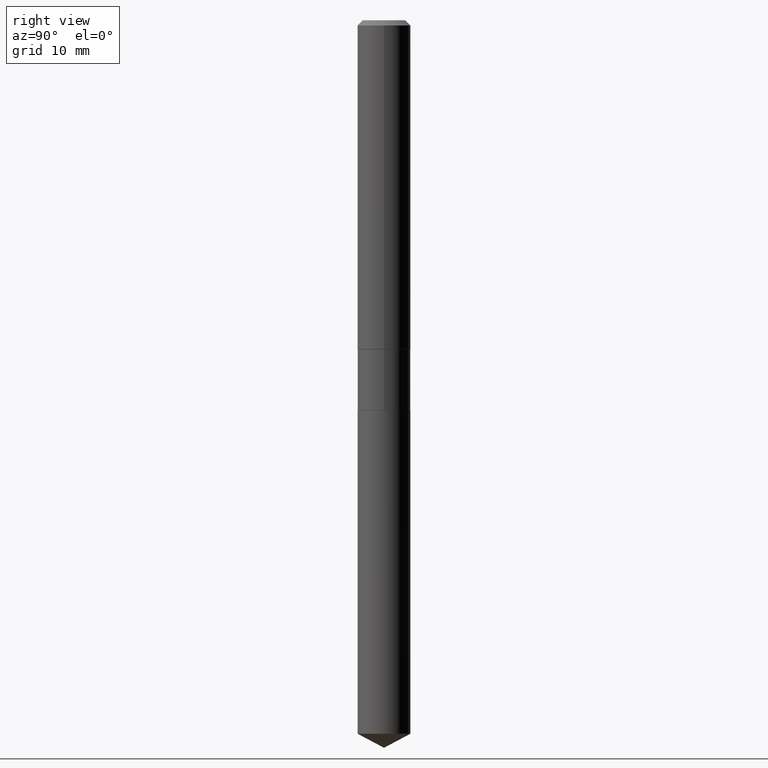
[diagram: clean part render]
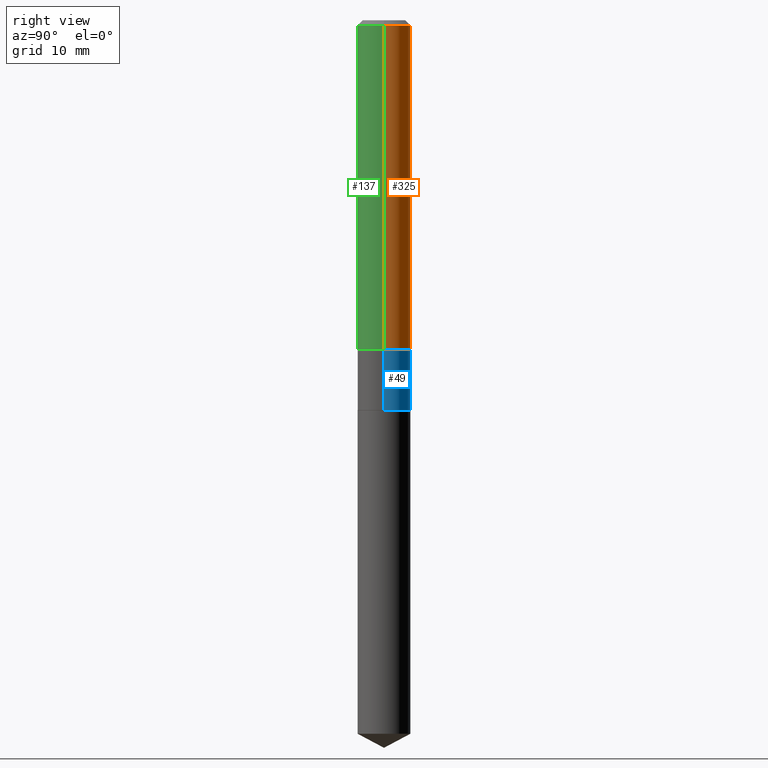
[diagram: same view with three faces highlighted in distinct colors, each labeled with its STEP entity id]
A machine part, right view with three faces highlighted in distinct colors.
Their STEP definitions:

[orange] entity #325 — the highlighted cylindrical surface (edge-blend (fillet) strip) has radius 2.9997 mm, axis along (-0, 0, 1).
#12 = EDGE_CURVE ( 'NONE', #139, #434, #409, .T. ) ;
#15 = LINE ( 'NONE', #182, #74 ) ;
#22 = CIRCLE ( 'NONE', #344, 0.1181000000000001632 ) ;
#28 = LINE ( 'NONE', #285, #127 ) ;
#60 = DIRECTION ( 'NONE',  ( 1.000000000000000000, -6.982962677686266711E-15, 4.876176775795936353E-29 ) ) ;
#70 = DIRECTION ( 'NONE',  ( 1.000000000000000000, -6.982962677686270655E-15, 0.000000000000000000 ) ) ;
#74 = VECTOR ( 'NONE', #219, 39.37007874015748143 ) ;
#91 = EDGE_LOOP ( 'NONE', ( #449, #390, #482, #176 ) ) ;
#100 = DIRECTION ( 'NONE',  ( -2.445468806185136597E-29, 3.491481338843145583E-15, 1.000000000000000000 ) ) ;
#127 = VECTOR ( 'NONE', #329, 39.37007874015748143 ) ;
#139 = VERTEX_POINT ( 'NONE', #156 ) ;
#140 = CARTESIAN_POINT ( 'NONE',  ( -0.1180999999999999966, -1.750690226967611791E-15, -0.02362000000000014088 ) ) ;
#141 = CYLINDRICAL_SURFACE ( 'NONE', #307, 0.1181000000000000799 ) ;
#156 = CARTESIAN_POINT ( 'NONE',  ( 0.1180999999999999966, -9.071566814582237199E-16, -0.02362000000000014088 ) ) ;
#176 = ORIENTED_EDGE ( 'NONE', *, *, #466, .F. ) ;
#182 = CARTESIAN_POINT ( 'NONE',  ( 0.1181000000000000799, -8.246878922347486570E-16, 5.758764772215004644E-30 ) ) ;
#188 = VERTEX_POINT ( 'NONE', #351 ) ;
#219 = DIRECTION ( 'NONE',  ( -2.445468806185136877E-29, 3.491481338843145188E-15, 1.000000000000000000 ) ) ;
#260 = CARTESIAN_POINT ( 'NONE',  ( 3.570139910149679929E-29, -5.097213606577107280E-15, -1.459899999999999531 ) ) ;
#285 = CARTESIAN_POINT ( 'NONE',  ( -0.1181000000000000799, 8.391509709326788873E-16, -5.809262341591047988E-30 ) ) ;
#296 = DIRECTION ( 'NONE',  ( -2.445468806185136597E-29, 3.491481338843145583E-15, 1.000000000000000000 ) ) ;
#307 = AXIS2_PLACEMENT_3D ( 'NONE', #439, #100, #60 ) ;
#310 = DIRECTION ( 'NONE',  ( 1.000000000000000000, -6.982962677686266711E-15, 0.000000000000000000 ) ) ;
#324 = FACE_OUTER_BOUND ( 'NONE', #91, .T. ) ;
#325 = ADVANCED_FACE ( 'NONE', ( #324 ), #141, .T. ) ;
#327 = CARTESIAN_POINT ( 'NONE',  ( 0.1181000000000001632, -5.921901498811854753E-15, -1.459899999999999531 ) ) ;
#329 = DIRECTION ( 'NONE',  ( -2.445468806185136877E-29, 3.491481338843145188E-15, 1.000000000000000000 ) ) ;
#339 = CARTESIAN_POINT ( 'NONE',  ( 5.776197320209327532E-31, -8.246878922347559293E-17, -0.02362000000000014088 ) ) ;
#344 = AXIS2_PLACEMENT_3D ( 'NONE', #260, #296, #70 ) ;
#351 = CARTESIAN_POINT ( 'NONE',  ( -0.1181000000000001632, -4.258062635644426716E-15, -1.459899999999999531 ) ) ;
#355 = EDGE_CURVE ( 'NONE', #444, #188, #22, .T. ) ;
#376 = AXIS2_PLACEMENT_3D ( 'NONE', #339, #420, #310 ) ;
#390 = ORIENTED_EDGE ( 'NONE', *, *, #432, .T. ) ;
#409 = CIRCLE ( 'NONE', #376, 0.1180999999999999966 ) ;
#420 = DIRECTION ( 'NONE',  ( -2.445468806185136597E-29, 3.491481338843145583E-15, 1.000000000000000000 ) ) ;
#432 = EDGE_CURVE ( 'NONE', #188, #434, #28, .T. ) ;
#434 = VERTEX_POINT ( 'NONE', #140 ) ;
#439 = CARTESIAN_POINT ( 'NONE',  ( 0.000000000000000000, 0.000000000000000000, 0.000000000000000000 ) ) ;
#444 = VERTEX_POINT ( 'NONE', #327 ) ;
#449 = ORIENTED_EDGE ( 'NONE', *, *, #355, .T. ) ;
#466 = EDGE_CURVE ( 'NONE', #444, #139, #15, .T. ) ;
#482 = ORIENTED_EDGE ( 'NONE', *, *, #12, .F. ) ;

[blue] entity #49 — the highlighted cylindrical surface (edge-blend (fillet) strip) has radius 2.9769 mm, axis along (-0, 0, 1).
#8 = CARTESIAN_POINT ( 'NONE',  ( 0.1171999999999999709, -5.918759165606896047E-15, -1.460799999999999876 ) ) ;
#16 = DIRECTION ( 'NONE',  ( -2.445468806185136597E-29, 3.491481338843145583E-15, 1.000000000000000000 ) ) ;
#26 = CARTESIAN_POINT ( 'NONE',  ( 0.1171999999999999986, -6.858316793889587922E-15, -1.729899999999999993 ) ) ;
#39 = VERTEX_POINT ( 'NONE', #124 ) ;
#45 = DIRECTION ( 'NONE',  ( -2.445468806185136597E-29, 3.491481338843145583E-15, 1.000000000000000000 ) ) ;
#49 = ADVANCED_FACE ( 'NONE', ( #86 ), #80, .T. ) ;
#65 = LINE ( 'NONE', #171, #410 ) ;
#73 = AXIS2_PLACEMENT_3D ( 'NONE', #232, #308, #118 ) ;
#76 = ORIENTED_EDGE ( 'NONE', *, *, #244, .F. ) ;
#80 = CYLINDRICAL_SURFACE ( 'NONE', #73, 0.1171999999999999847 ) ;
#86 = FACE_OUTER_BOUND ( 'NONE', #108, .T. ) ;
#89 = VERTEX_POINT ( 'NONE', #8 ) ;
#98 = EDGE_CURVE ( 'NONE', #294, #39, #387, .T. ) ;
#108 = EDGE_LOOP ( 'NONE', ( #264, #161, #76, #110 ) ) ;
#110 = ORIENTED_EDGE ( 'NONE', *, *, #380, .F. ) ;
#118 = DIRECTION ( 'NONE',  ( 1.000000000000000000, -6.982962677686266711E-15, 4.876176775795935793E-29 ) ) ;
#124 = CARTESIAN_POINT ( 'NONE',  ( -0.1171999999999999709, -4.737378667612574713E-15, -1.460799999999999876 ) ) ;
#144 = EDGE_CURVE ( 'NONE', #330, #294, #160, .T. ) ;
#160 = CIRCLE ( 'NONE', #350, 0.1171999999999999986 ) ;
#161 = ORIENTED_EDGE ( 'NONE', *, *, #98, .T. ) ;
#171 = CARTESIAN_POINT ( 'NONE',  ( 0.1171999999999999847, -8.184032258248303567E-16, 5.714879181232835774E-30 ) ) ;
#173 = DIRECTION ( 'NONE',  ( 1.000000000000000000, -6.982962677686263555E-15, 0.000000000000000000 ) ) ;
#177 = CIRCLE ( 'NONE', #481, 0.1171999999999999709 ) ;
#232 = CARTESIAN_POINT ( 'NONE',  ( 0.000000000000000000, 0.000000000000000000, 0.000000000000000000 ) ) ;
#234 = DIRECTION ( 'NONE',  ( 1.000000000000000000, -6.982962677686269866E-15, 0.000000000000000000 ) ) ;
#244 = EDGE_CURVE ( 'NONE', #89, #39, #177, .T. ) ;
#253 = CARTESIAN_POINT ( 'NONE',  ( -0.1172000000000000125, -4.737378667612574713E-15, -1.729899999999999993 ) ) ;
#264 = ORIENTED_EDGE ( 'NONE', *, *, #144, .T. ) ;
#276 = CARTESIAN_POINT ( 'NONE',  ( -0.1171999999999999847, 8.327560863108373095E-16, -5.764991925778748420E-30 ) ) ;
#294 = VERTEX_POINT ( 'NONE', #253 ) ;
#305 = CARTESIAN_POINT ( 'NONE',  ( 4.230416487819667730E-29, -6.039913568064757072E-15, -1.729899999999999993 ) ) ;
#308 = DIRECTION ( 'NONE',  ( -2.445468806185136597E-29, 3.491481338843145583E-15, 1.000000000000000000 ) ) ;
#312 = DIRECTION ( 'NONE',  ( -2.445468806185136877E-29, 3.491481338843145188E-15, 1.000000000000000000 ) ) ;
#320 = VECTOR ( 'NONE', #312, 39.37007874015748143 ) ;
#330 = VERTEX_POINT ( 'NONE', #26 ) ;
#350 = AXIS2_PLACEMENT_3D ( 'NONE', #305, #45, #234 ) ;
#354 = CARTESIAN_POINT ( 'NONE',  ( 3.572340832075246748E-29, -5.100355939782065986E-15, -1.460799999999999876 ) ) ;
#356 = DIRECTION ( 'NONE',  ( -2.445468806185136877E-29, 3.491481338843145188E-15, 1.000000000000000000 ) ) ;
#380 = EDGE_CURVE ( 'NONE', #330, #89, #65, .T. ) ;
#387 = LINE ( 'NONE', #276, #320 ) ;
#410 = VECTOR ( 'NONE', #356, 39.37007874015748143 ) ;
#481 = AXIS2_PLACEMENT_3D ( 'NONE', #354, #16, #173 ) ;

[green] entity #137 — the highlighted cylindrical surface (edge-blend (fillet) strip) has radius 2.9997 mm, axis along (-0, 0, 1).
#15 = LINE ( 'NONE', #182, #74 ) ;
#21 = DIRECTION ( 'NONE',  ( -2.445468806185136597E-29, 3.491481338843145583E-15, 1.000000000000000000 ) ) ;
#28 = LINE ( 'NONE', #285, #127 ) ;
#57 = ORIENTED_EDGE ( 'NONE', *, *, #466, .T. ) ;
#74 = VECTOR ( 'NONE', #219, 39.37007874015748143 ) ;
#125 = DIRECTION ( 'NONE',  ( 1.000000000000000000, -6.982962677686266711E-15, 4.876176775795936353E-29 ) ) ;
#127 = VECTOR ( 'NONE', #329, 39.37007874015748143 ) ;
#128 = CARTESIAN_POINT ( 'NONE',  ( 0.000000000000000000, 0.000000000000000000, 0.000000000000000000 ) ) ;
#130 = ORIENTED_EDGE ( 'NONE', *, *, #279, .T. ) ;
#137 = ADVANCED_FACE ( 'NONE', ( #273 ), #381, .T. ) ;
#138 = EDGE_LOOP ( 'NONE', ( #334, #130, #57, #454 ) ) ;
#139 = VERTEX_POINT ( 'NONE', #156 ) ;
#140 = CARTESIAN_POINT ( 'NONE',  ( -0.1180999999999999966, -1.750690226967611791E-15, -0.02362000000000014088 ) ) ;
#156 = CARTESIAN_POINT ( 'NONE',  ( 0.1180999999999999966, -9.071566814582237199E-16, -0.02362000000000014088 ) ) ;
#182 = CARTESIAN_POINT ( 'NONE',  ( 0.1181000000000000799, -8.246878922347486570E-16, 5.758764772215004644E-30 ) ) ;
#188 = VERTEX_POINT ( 'NONE', #351 ) ;
#219 = DIRECTION ( 'NONE',  ( -2.445468806185136877E-29, 3.491481338843145188E-15, 1.000000000000000000 ) ) ;
#236 = AXIS2_PLACEMENT_3D ( 'NONE', #243, #21, #471 ) ;
#243 = CARTESIAN_POINT ( 'NONE',  ( 3.570139910149679929E-29, -5.097213606577107280E-15, -1.459899999999999531 ) ) ;
#258 = DIRECTION ( 'NONE',  ( 1.000000000000000000, -6.982962677686266711E-15, 0.000000000000000000 ) ) ;
#270 = DIRECTION ( 'NONE',  ( -2.445468806185136597E-29, 3.491481338843145583E-15, 1.000000000000000000 ) ) ;
#273 = FACE_OUTER_BOUND ( 'NONE', #138, .T. ) ;
#279 = EDGE_CURVE ( 'NONE', #188, #444, #451, .T. ) ;
#284 = CIRCLE ( 'NONE', #472, 0.1180999999999999966 ) ;
#285 = CARTESIAN_POINT ( 'NONE',  ( -0.1181000000000000799, 8.391509709326788873E-16, -5.809262341591047988E-30 ) ) ;
#327 = CARTESIAN_POINT ( 'NONE',  ( 0.1181000000000001632, -5.921901498811854753E-15, -1.459899999999999531 ) ) ;
#329 = DIRECTION ( 'NONE',  ( -2.445468806185136877E-29, 3.491481338843145188E-15, 1.000000000000000000 ) ) ;
#334 = ORIENTED_EDGE ( 'NONE', *, *, #432, .F. ) ;
#351 = CARTESIAN_POINT ( 'NONE',  ( -0.1181000000000001632, -4.258062635644426716E-15, -1.459899999999999531 ) ) ;
#381 = CYLINDRICAL_SURFACE ( 'NONE', #385, 0.1181000000000000799 ) ;
#385 = AXIS2_PLACEMENT_3D ( 'NONE', #128, #270, #125 ) ;
#393 = DIRECTION ( 'NONE',  ( -2.445468806185136597E-29, 3.491481338843145583E-15, 1.000000000000000000 ) ) ;
#432 = EDGE_CURVE ( 'NONE', #188, #434, #28, .T. ) ;
#434 = VERTEX_POINT ( 'NONE', #140 ) ;
#444 = VERTEX_POINT ( 'NONE', #327 ) ;
#447 = CARTESIAN_POINT ( 'NONE',  ( 5.776197320209327532E-31, -8.246878922347559293E-17, -0.02362000000000014088 ) ) ;
#451 = CIRCLE ( 'NONE', #236, 0.1181000000000001632 ) ;
#454 = ORIENTED_EDGE ( 'NONE', *, *, #465, .F. ) ;
#465 = EDGE_CURVE ( 'NONE', #434, #139, #284, .T. ) ;
#466 = EDGE_CURVE ( 'NONE', #444, #139, #15, .T. ) ;
#471 = DIRECTION ( 'NONE',  ( 1.000000000000000000, -6.982962677686270655E-15, 0.000000000000000000 ) ) ;
#472 = AXIS2_PLACEMENT_3D ( 'NONE', #447, #393, #258 ) ;